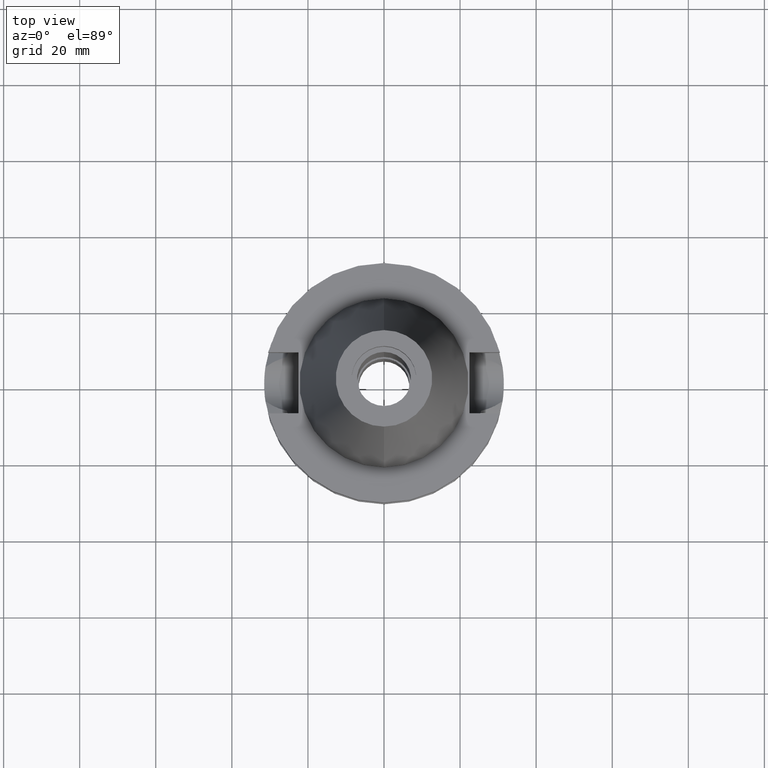
[diagram: clean part render]
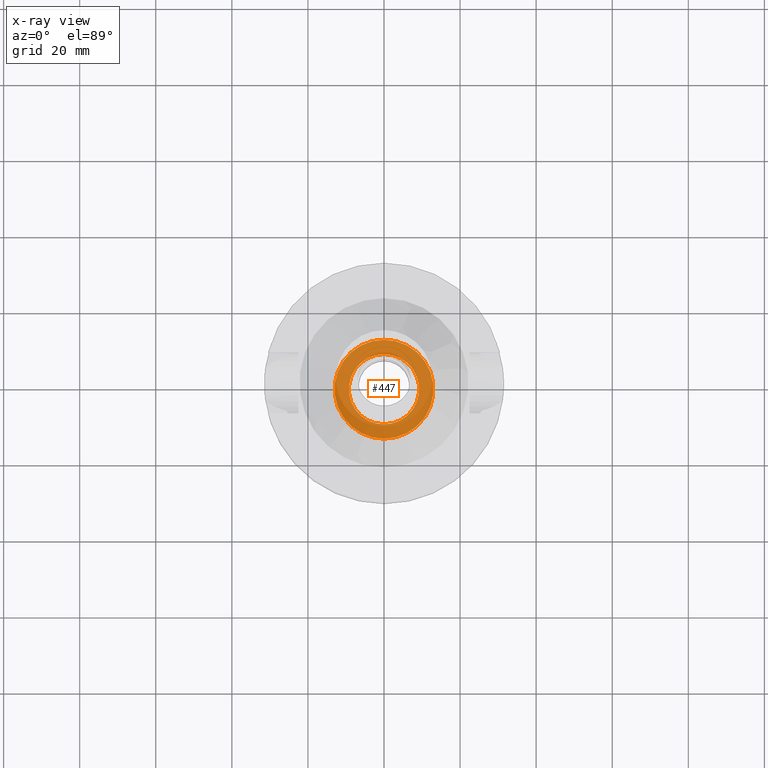
[diagram: x-ray — body ghosted, one internal face saturated and labeled with its STEP entity id]
A machine part, top view, then the same camera in x-ray: the body is ghosted and one INTERNAL B-rep face — a face not visible from any outside direction — is saturated and labeled: STEP entity #447.
In plain terms, the highlighted planar face has unit normal (0, 0, -1).
Its self-contained STEP definition (entity closure, byte-faithful):
#33 = DIRECTION ( 'NONE',  ( 0.0000000000000000000, 0.0000000000000000000, 1.000000000000000000 ) ) ;
#44 = EDGE_CURVE ( 'NONE', #860, #3162, #3520, .T. ) ;
#177 = EDGE_CURVE ( 'NONE', #3162, #860, #862, .T. ) ;
#273 = FACE_OUTER_BOUND ( 'NONE', #3429, .T. ) ;
#447 = ADVANCED_FACE ( 'NONE', ( #273, #1048 ), #1127, .F. ) ;
#653 = ORIENTED_EDGE ( 'NONE', *, *, #2341, .F. ) ;
#731 = CARTESIAN_POINT ( 'NONE',  ( 0.0000000000000000000, -13.00000000000000000, -11.00000000000000000 ) ) ;
#732 = DIRECTION ( 'NONE',  ( 0.0000000000000000000, 1.000000000000000000, 0.0000000000000000000 ) ) ;
#776 = CARTESIAN_POINT ( 'NONE',  ( 0.0000000000000000000, 9.250000000000000000, -11.00000000000000000 ) ) ;
#779 = CARTESIAN_POINT ( 'NONE',  ( 0.0000000000000000000, 0.0000000000000000000, -11.00000000000000000 ) ) ;
#860 = VERTEX_POINT ( 'NONE', #776 ) ;
#862 = CIRCLE ( 'NONE', #1331, 9.250000000000000000 ) ;
#964 = ORIENTED_EDGE ( 'NONE', *, *, #177, .F. ) ;
#1006 = CARTESIAN_POINT ( 'NONE',  ( 0.0000000000000000000, 0.0000000000000000000, -11.00000000000000000 ) ) ;
#1048 = FACE_BOUND ( 'NONE', #1900, .T. ) ;
#1064 = DIRECTION ( 'NONE',  ( 0.0000000000000000000, 0.0000000000000000000, -1.000000000000000000 ) ) ;
#1094 = DIRECTION ( 'NONE',  ( 0.0000000000000000000, 0.0000000000000000000, 1.000000000000000000 ) ) ;
#1127 = PLANE ( 'NONE',  #2698 ) ;
#1146 = DIRECTION ( 'NONE',  ( 0.0000000000000000000, -1.000000000000000000, 0.0000000000000000000 ) ) ;
#1221 = AXIS2_PLACEMENT_3D ( 'NONE', #1967, #33, #1837 ) ;
#1331 = AXIS2_PLACEMENT_3D ( 'NONE', #2562, #1094, #1146 ) ;
#1535 = CARTESIAN_POINT ( 'NONE',  ( 0.0000000000000000000, -9.250000000000000000, -11.00000000000000000 ) ) ;
#1769 = VERTEX_POINT ( 'NONE', #3230 ) ;
#1837 = DIRECTION ( 'NONE',  ( 0.0000000000000000000, 1.000000000000000000, 0.0000000000000000000 ) ) ;
#1900 = EDGE_LOOP ( 'NONE', ( #2547, #964 ) ) ;
#1902 = DIRECTION ( 'NONE',  ( 0.0000000000000000000, 0.0000000000000000000, -1.000000000000000000 ) ) ;
#1967 = CARTESIAN_POINT ( 'NONE',  ( 0.0000000000000000000, 0.0000000000000000000, -11.00000000000000000 ) ) ;
#2141 = DIRECTION ( 'NONE',  ( 0.0000000000000000000, -1.000000000000000000, 0.0000000000000000000 ) ) ;
#2173 = CARTESIAN_POINT ( 'NONE',  ( 0.0000000000000000000, 0.0000000000000000000, -11.00000000000000000 ) ) ;
#2341 = EDGE_CURVE ( 'NONE', #1769, #2781, #2768, .T. ) ;
#2547 = ORIENTED_EDGE ( 'NONE', *, *, #44, .F. ) ;
#2562 = CARTESIAN_POINT ( 'NONE',  ( 0.0000000000000000000, 0.0000000000000000000, -11.00000000000000000 ) ) ;
#2698 = AXIS2_PLACEMENT_3D ( 'NONE', #779, #1902, #2795 ) ;
#2768 = CIRCLE ( 'NONE', #3591, 13.00000000000000000 ) ;
#2781 = VERTEX_POINT ( 'NONE', #731 ) ;
#2795 = DIRECTION ( 'NONE',  ( 0.0000000000000000000, -1.000000000000000000, 0.0000000000000000000 ) ) ;
#2962 = CIRCLE ( 'NONE', #3254, 13.00000000000000000 ) ;
#3151 = ORIENTED_EDGE ( 'NONE', *, *, #3479, .F. ) ;
#3162 = VERTEX_POINT ( 'NONE', #1535 ) ;
#3230 = CARTESIAN_POINT ( 'NONE',  ( 0.0000000000000000000, 13.00000000000000000, -11.00000000000000000 ) ) ;
#3254 = AXIS2_PLACEMENT_3D ( 'NONE', #1006, #1064, #2141 ) ;
#3306 = DIRECTION ( 'NONE',  ( 0.0000000000000000000, 0.0000000000000000000, -1.000000000000000000 ) ) ;
#3429 = EDGE_LOOP ( 'NONE', ( #653, #3151 ) ) ;
#3479 = EDGE_CURVE ( 'NONE', #2781, #1769, #2962, .T. ) ;
#3520 = CIRCLE ( 'NONE', #1221, 9.250000000000000000 ) ;
#3591 = AXIS2_PLACEMENT_3D ( 'NONE', #2173, #3306, #732 ) ;